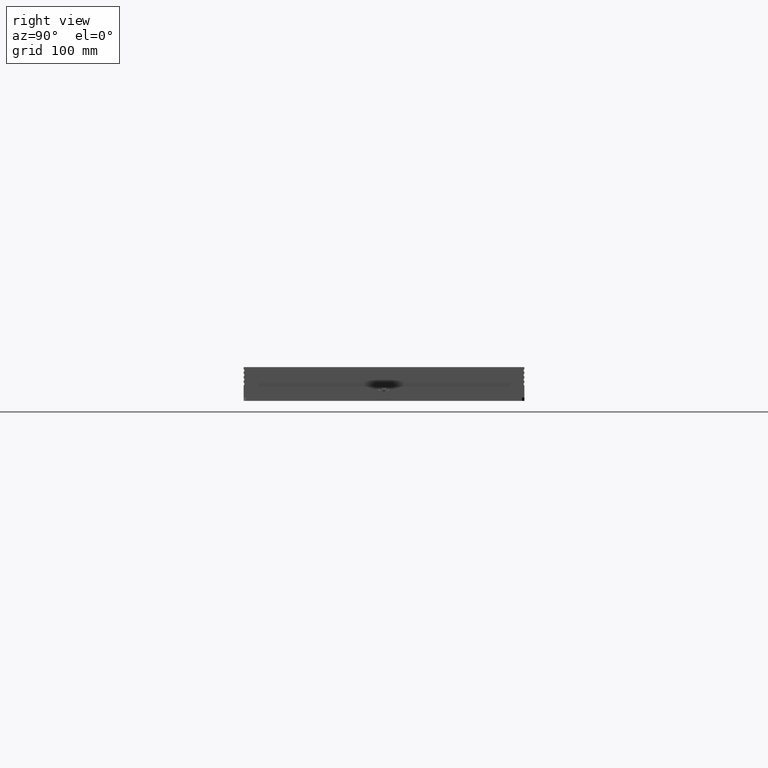
[diagram: clean part render]
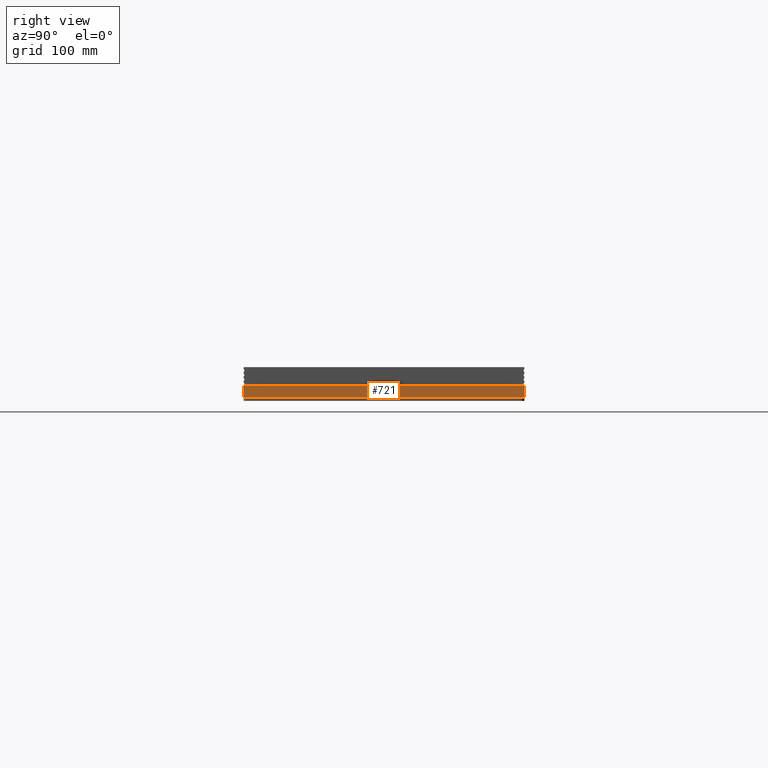
[diagram: same view with one face highlighted and labeled with its STEP entity id]
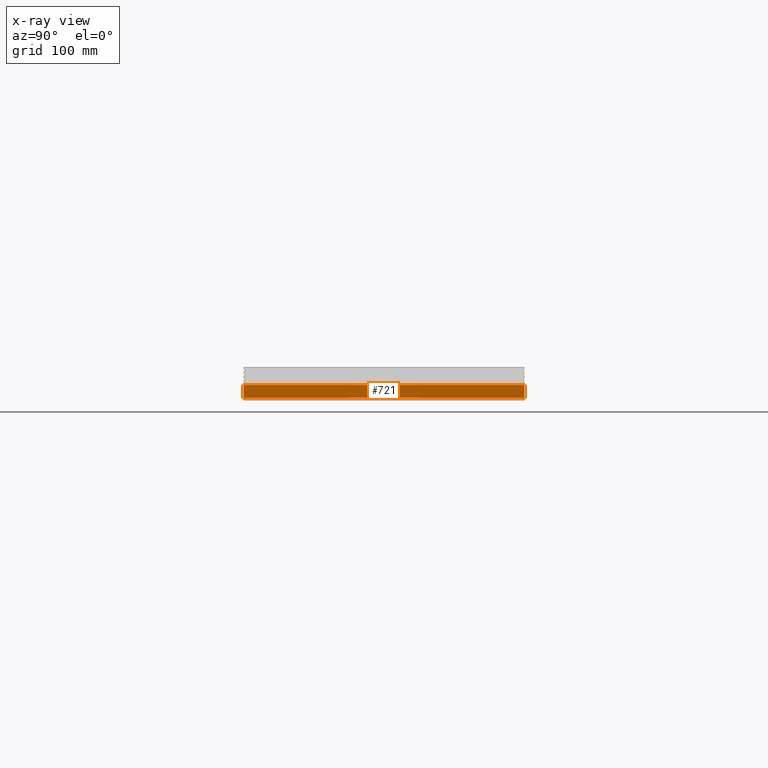
[diagram: x-ray of the same camera — body ghosted, the highlighted face saturated]
A machine part, right view. The second image highlights one B-rep face of the part: STEP entity #721.
The next image is the same camera in x-ray: the body ghosted, the highlighted face saturated — about 2% of this face is hidden behind the body in this view.
In plain terms, the highlighted planar face has unit normal (1, 0, 0).
Its self-contained STEP definition (entity closure, byte-faithful):
#721=ADVANCED_FACE('0:136',(#2028),#2029,.T.);
#2028=FACE_OUTER_BOUND('',#3815,.T.);
#2029=PLANE('',#3816);
#3815=EDGE_LOOP('',(#6838,#6839,#6840,#6841,#6842,#6843));
#3816=AXIS2_PLACEMENT_3D('',#6844,#6845,#6846);
#6838=ORIENTED_EDGE('',*,*,#9371,.T.);
#6839=ORIENTED_EDGE('',*,*,#9315,.T.);
#6840=ORIENTED_EDGE('',*,*,#9313,.T.);
#6841=ORIENTED_EDGE('',*,*,#9321,.T.);
#6842=ORIENTED_EDGE('',*,*,#9372,.F.);
#6843=ORIENTED_EDGE('',*,*,#9373,.T.);
#6844=CARTESIAN_POINT('',(0.2445,-0.1245,0.00299999999999956));
#6845=DIRECTION('',(1.0,0.0,0.0));
#6846=DIRECTION('',(0.0,-3.49148336110938E-15,1.0));
#9313=EDGE_CURVE('0:577',#9725,#9727,#9729,.T.);
#9315=EDGE_CURVE('0:574',#9731,#9725,#9732,.T.);
#9321=EDGE_CURVE('0:580',#9727,#9741,#9743,.T.);
#9371=EDGE_CURVE('0:571',#9833,#9731,#9834,.T.);
#9372=EDGE_CURVE('0:391',#9835,#9741,#9836,.T.);
#9373=EDGE_CURVE('0:583',#9835,#9833,#9837,.T.);
#9725=VERTEX_POINT('',#10261);
#9727=VERTEX_POINT('',#10264);
#9729=CIRCLE('',#10267,0.00325);
#9731=VERTEX_POINT('',#10269);
#9732=LINE('',#10270,#10271);
#9741=VERTEX_POINT('',#10284);
#9743=LINE('',#10287,#10288);
#9833=VERTEX_POINT('',#10410);
#9834=LINE('',#10411,#10412);
#9835=VERTEX_POINT('',#10413);
#9836=LINE('',#10414,#10415);
#9837=LINE('',#10416,#10417);
#10261=CARTESIAN_POINT('',(0.2445,-0.00124999999999996,0.00299999999999999));
#10264=CARTESIAN_POINT('',(0.2445,0.00125000000000004,0.003));
#10267=AXIS2_PLACEMENT_3D('',#10956,#10957,#10958);
#10269=CARTESIAN_POINT('',(0.2445,-0.1245,0.00299999999999956));
#10270=CARTESIAN_POINT('',(0.2445,-0.1245,0.00299999999999956));
#10271=VECTOR('',#10959,1.0);
#10284=CARTESIAN_POINT('',(0.2445,0.1245,0.00300000000000043));
#10287=CARTESIAN_POINT('',(0.2445,0.00125000000000004,0.003));
#10288=VECTOR('',#10965,1.0);
#10410=CARTESIAN_POINT('',(0.2445,-0.1245,0.0139999999999996));
#10411=CARTESIAN_POINT('',(0.2445,-0.1245,0.0139999999999996));
#10412=VECTOR('',#11022,1.0);
#10413=CARTESIAN_POINT('',(0.2445,0.1245,0.0140000000000004));
#10414=CARTESIAN_POINT('',(0.2445,0.1245,0.0140000000000004));
#10415=VECTOR('',#11023,1.0);
#10416=CARTESIAN_POINT('',(0.2445,0.1245,0.0140000000000004));
#10417=VECTOR('',#11024,1.0);
#10956=CARTESIAN_POINT('',(0.2445,3.14233502499844E-17,0.006));
#10957=DIRECTION('',(-1.0,-0.0,0.0));
#10958=DIRECTION('',(0.0,-0.384615384615403,-0.923076923076916));
#10959=DIRECTION('',(0.0,1.0,3.49148336110938E-15));
#10965=DIRECTION('',(0.0,1.0,3.49148336110938E-15));
#11022=DIRECTION('',(0.0,3.49148336110938E-15,-1.0));
#11023=DIRECTION('',(0.0,3.49148336110938E-15,-1.0));
#11024=DIRECTION('',(0.0,-1.0,-3.49148336110938E-15));